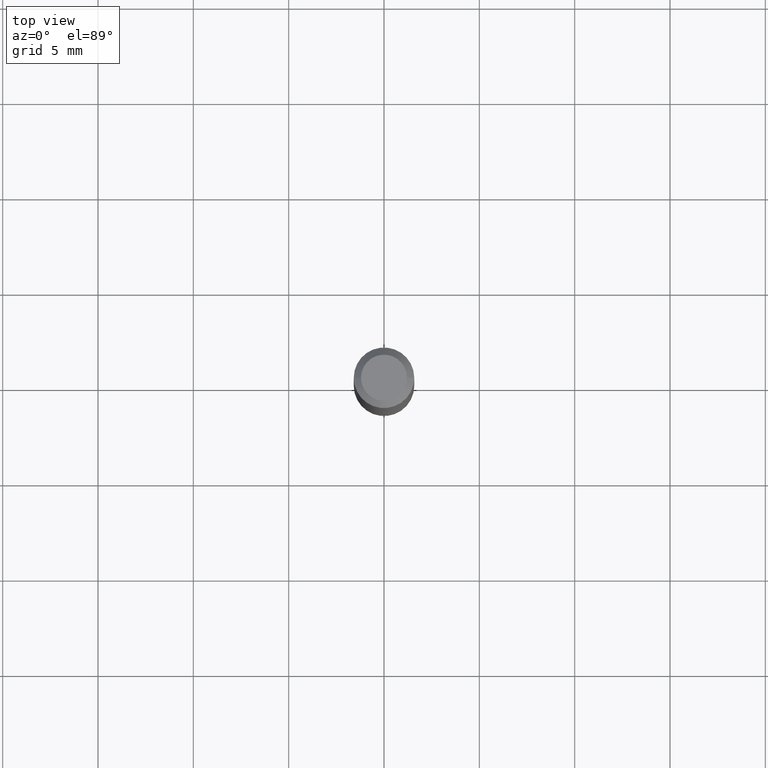
[diagram: clean part render]
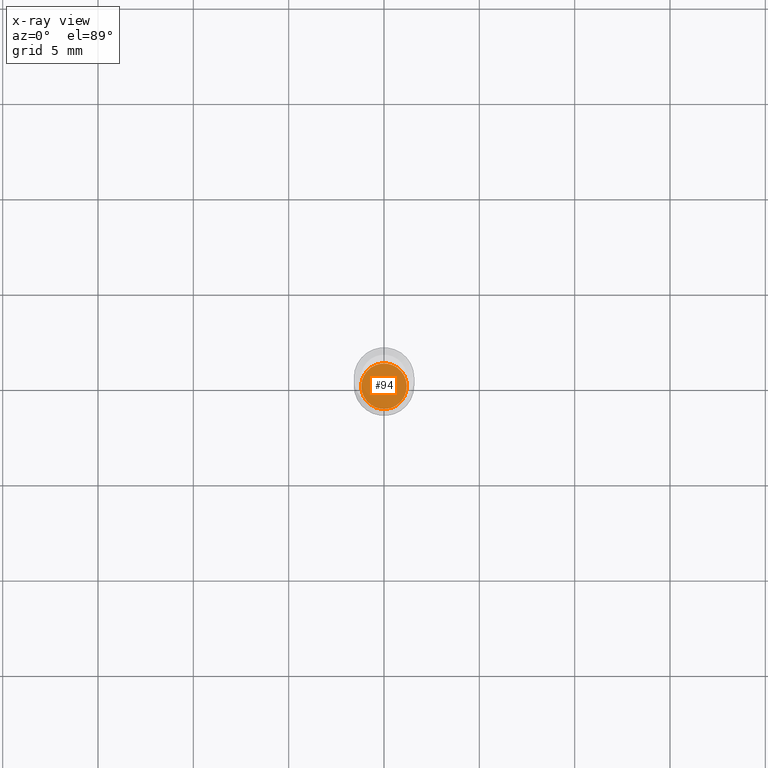
[diagram: x-ray — body ghosted, one internal face saturated and labeled with its STEP entity id]
A machine part, top view, then the same camera in x-ray: the body is ghosted and one INTERNAL B-rep face — a face not visible from any outside direction — is saturated and labeled: STEP entity #94.
In plain terms, the highlighted planar face has unit normal (-0, 0, 1).
Its self-contained STEP definition (entity closure, byte-faithful):
#23 = EDGE_CURVE ( 'NONE', #334, #330, #159, .T. ) ;
#24 = DIRECTION ( 'NONE',  ( 1.000000000000000000, -6.982962677686265922E-15, 4.876176775795935793E-29 ) ) ;
#43 = CARTESIAN_POINT ( 'NONE',  ( -0.04699999999999999317, -3.242164059332866120E-15, -1.025000000000000133 ) ) ;
#45 = DIRECTION ( 'NONE',  ( 1.000000000000000000, -6.982962677686272233E-15, 0.000000000000000000 ) ) ;
#84 = CARTESIAN_POINT ( 'NONE',  ( 2.506605526339765180E-29, -3.578768372314224311E-15, -1.025000000000000133 ) ) ;
#94 = ADVANCED_FACE ( 'NONE', ( #271 ), #311, .F. ) ;
#97 = CIRCLE ( 'NONE', #429, 0.04699999999999999317 ) ;
#159 = CIRCLE ( 'NONE', #220, 0.04699999999999999317 ) ;
#174 = DIRECTION ( 'NONE',  ( -2.445468806185136597E-29, 3.491481338843145583E-15, 1.000000000000000000 ) ) ;
#220 = AXIS2_PLACEMENT_3D ( 'NONE', #313, #174, #455 ) ;
#234 = DIRECTION ( 'NONE',  ( -2.438088387897960049E-29, 3.491481338843145188E-15, 1.000000000000000000 ) ) ;
#271 = FACE_OUTER_BOUND ( 'NONE', #401, .T. ) ;
#274 = DIRECTION ( 'NONE',  ( -2.445468806185136597E-29, 3.491481338843145583E-15, 1.000000000000000000 ) ) ;
#292 = ORIENTED_EDGE ( 'NONE', *, *, #320, .F. ) ;
#301 = CARTESIAN_POINT ( 'NONE',  ( 0.04699999999999999317, -3.906967618165479604E-15, -1.025000000000000133 ) ) ;
#304 = AXIS2_PLACEMENT_3D ( 'NONE', #425, #234, #24 ) ;
#311 = PLANE ( 'NONE',  #304 ) ;
#313 = CARTESIAN_POINT ( 'NONE',  ( 2.506605526339765180E-29, -3.578768372314224311E-15, -1.025000000000000133 ) ) ;
#320 = EDGE_CURVE ( 'NONE', #330, #334, #97, .T. ) ;
#330 = VERTEX_POINT ( 'NONE', #43 ) ;
#334 = VERTEX_POINT ( 'NONE', #301 ) ;
#359 = ORIENTED_EDGE ( 'NONE', *, *, #23, .F. ) ;
#401 = EDGE_LOOP ( 'NONE', ( #359, #292 ) ) ;
#425 = CARTESIAN_POINT ( 'NONE',  ( 2.506605526339765180E-29, -3.578768372314224311E-15, -1.025000000000000133 ) ) ;
#429 = AXIS2_PLACEMENT_3D ( 'NONE', #84, #274, #45 ) ;
#455 = DIRECTION ( 'NONE',  ( 1.000000000000000000, -6.982962677686272233E-15, 0.000000000000000000 ) ) ;